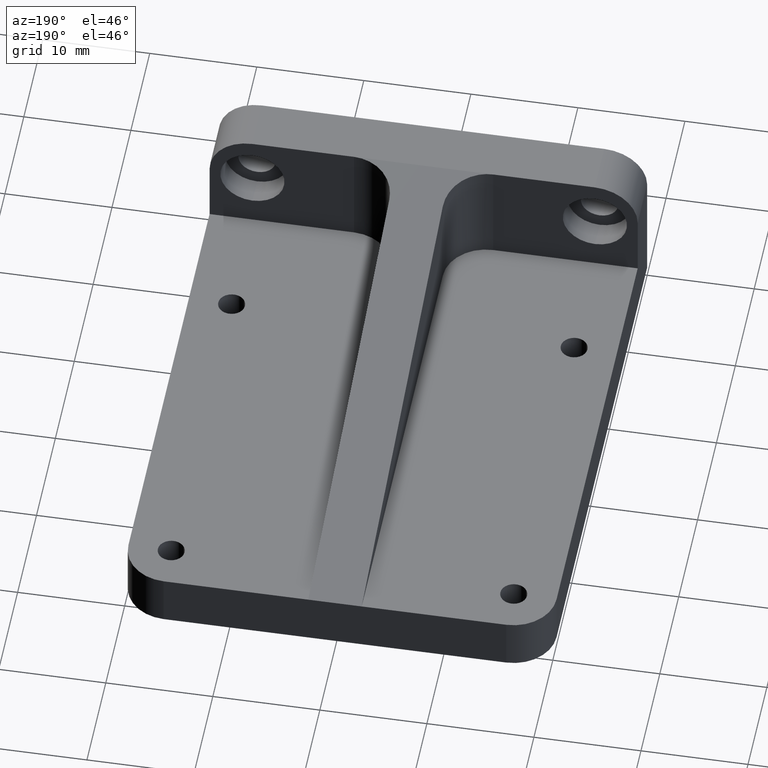
[diagram: clean part render]
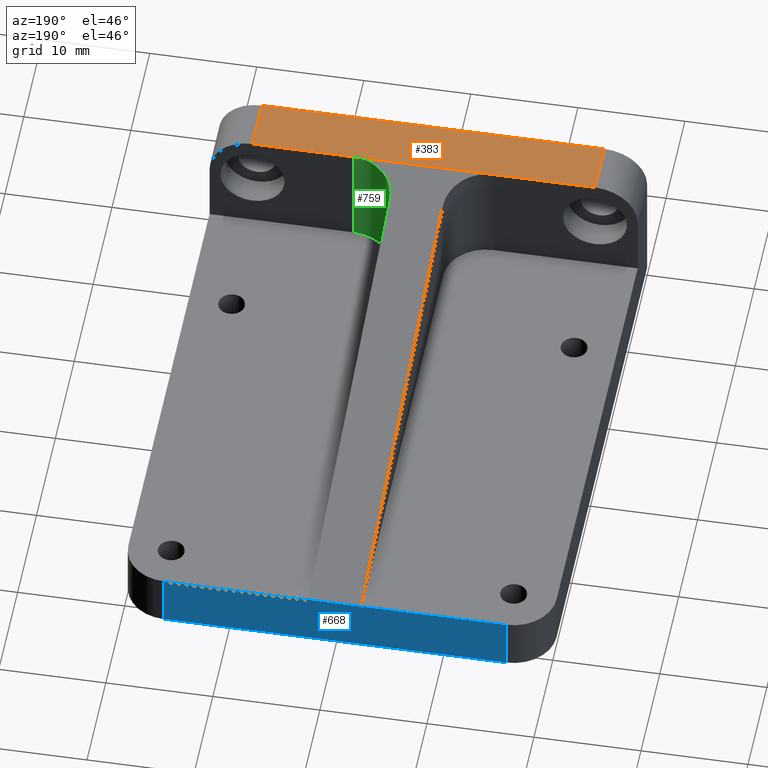
[diagram: same view with three faces highlighted in distinct colors, each labeled with its STEP entity id]
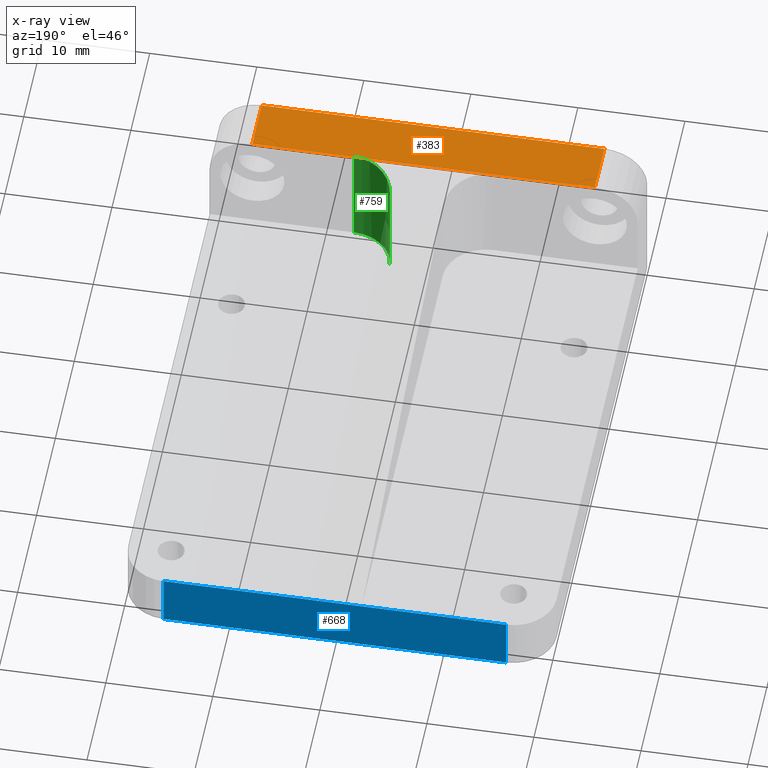
[diagram: x-ray of the same camera — body ghosted, the three highlighted faces saturated]
A machine part, auxiliary view with three faces highlighted in distinct colors.
The next image is the same camera in x-ray (body ghosted, the three faces saturated) — at least one of them is partly hidden behind the body in this view.
Their STEP definitions:

[orange] entity #383 — the highlighted planar face has unit normal (0, 0, -1).
#15 = VECTOR ( 'NONE', #348, 1000.000000000000000 ) ;
#55 = ORIENTED_EDGE ( 'NONE', *, *, #1007, .T. ) ;
#82 = ORIENTED_EDGE ( 'NONE', *, *, #958, .T. ) ;
#115 = VERTEX_POINT ( 'NONE', #713 ) ;
#118 = ORIENTED_EDGE ( 'NONE', *, *, #439, .F. ) ;
#149 = CARTESIAN_POINT ( 'NONE',  ( 20.00000000000000000, -1.836970198721029589E-15, 15.00000000000000000 ) ) ;
#156 = VERTEX_POINT ( 'NONE', #456 ) ;
#203 = CARTESIAN_POINT ( 'NONE',  ( 16.00000000000000000, -1.836970198721029589E-15, 15.00000000000000000 ) ) ;
#206 = CARTESIAN_POINT ( 'NONE',  ( 20.00000000000000000, 4.999999999999998224, 15.00000000000000000 ) ) ;
#262 = VECTOR ( 'NONE', #756, 1000.000000000000000 ) ;
#292 = DIRECTION ( 'NONE',  ( -1.000000000000000000, -0.0000000000000000000, -0.0000000000000000000 ) ) ;
#338 = EDGE_CURVE ( 'NONE', #1134, #678, #1071, .T. ) ;
#348 = DIRECTION ( 'NONE',  ( 0.0000000000000000000, -1.000000000000000000, 0.0000000000000000000 ) ) ;
#352 = CARTESIAN_POINT ( 'NONE',  ( -6.499999999999995559, 4.999999999999998224, 15.00000000000000000 ) ) ;
#375 = LINE ( 'NONE', #557, #473 ) ;
#383 = ADVANCED_FACE ( 'NONE', ( #1003 ), #499, .F. ) ;
#405 = ORIENTED_EDGE ( 'NONE', *, *, #338, .F. ) ;
#439 = EDGE_CURVE ( 'NONE', #712, #584, #519, .T. ) ;
#456 = CARTESIAN_POINT ( 'NONE',  ( 6.500000000000005329, 4.999999999999998224, 15.00000000000000000 ) ) ;
#473 = VECTOR ( 'NONE', #292, 1000.000000000000000 ) ;
#480 = LINE ( 'NONE', #561, #906 ) ;
#499 = PLANE ( 'NONE',  #564 ) ;
#519 = LINE ( 'NONE', #909, #672 ) ;
#557 = CARTESIAN_POINT ( 'NONE',  ( 20.00000000000000000, 4.999999999999998224, 15.00000000000000000 ) ) ;
#561 = CARTESIAN_POINT ( 'NONE',  ( 16.00000000000000000, -1.836970198721029589E-15, 15.00000000000000000 ) ) ;
#564 = AXIS2_PLACEMENT_3D ( 'NONE', #149, #1187, #717 ) ;
#570 = DIRECTION ( 'NONE',  ( -0.0000000000000000000, 1.000000000000000000, -0.0000000000000000000 ) ) ;
#584 = VERTEX_POINT ( 'NONE', #602 ) ;
#600 = EDGE_LOOP ( 'NONE', ( #118, #904, #1107, #55, #405, #82 ) ) ;
#602 = CARTESIAN_POINT ( 'NONE',  ( -16.00000000000000355, -1.836970198721029589E-15, 15.00000000000000000 ) ) ;
#607 = VECTOR ( 'NONE', #1099, 1000.000000000000000 ) ;
#672 = VECTOR ( 'NONE', #711, 1000.000000000000000 ) ;
#678 = VERTEX_POINT ( 'NONE', #352 ) ;
#711 = DIRECTION ( 'NONE',  ( -1.000000000000000000, -0.0000000000000000000, -0.0000000000000000000 ) ) ;
#712 = VERTEX_POINT ( 'NONE', #203 ) ;
#713 = CARTESIAN_POINT ( 'NONE',  ( 16.00000000000000000, 4.999999999999998224, 15.00000000000000000 ) ) ;
#717 = DIRECTION ( 'NONE',  ( -1.000000000000000000, 0.0000000000000000000, -0.0000000000000000000 ) ) ;
#755 = CARTESIAN_POINT ( 'NONE',  ( -16.00000000000000355, 4.999999999999998224, 15.00000000000000000 ) ) ;
#756 = DIRECTION ( 'NONE',  ( 1.000000000000000000, 0.0000000000000000000, 0.0000000000000000000 ) ) ;
#904 = ORIENTED_EDGE ( 'NONE', *, *, #1054, .T. ) ;
#906 = VECTOR ( 'NONE', #570, 1000.000000000000000 ) ;
#909 = CARTESIAN_POINT ( 'NONE',  ( 20.00000000000000000, -1.836970198721029589E-15, 15.00000000000000000 ) ) ;
#958 = EDGE_CURVE ( 'NONE', #1134, #584, #1021, .T. ) ;
#1003 = FACE_OUTER_BOUND ( 'NONE', #600, .T. ) ;
#1007 = EDGE_CURVE ( 'NONE', #156, #678, #375, .T. ) ;
#1015 = CARTESIAN_POINT ( 'NONE',  ( -16.00000000000000355, -1.836970198721029589E-15, 15.00000000000000000 ) ) ;
#1021 = LINE ( 'NONE', #1015, #15 ) ;
#1054 = EDGE_CURVE ( 'NONE', #712, #115, #480, .T. ) ;
#1064 = CARTESIAN_POINT ( 'NONE',  ( -20.00000000000000000, 4.999999999999998224, 15.00000000000000000 ) ) ;
#1071 = LINE ( 'NONE', #1064, #262 ) ;
#1099 = DIRECTION ( 'NONE',  ( -1.000000000000000000, -0.0000000000000000000, -0.0000000000000000000 ) ) ;
#1107 = ORIENTED_EDGE ( 'NONE', *, *, #1183, .T. ) ;
#1134 = VERTEX_POINT ( 'NONE', #755 ) ;
#1180 = LINE ( 'NONE', #206, #607 ) ;
#1183 = EDGE_CURVE ( 'NONE', #115, #156, #1180, .T. ) ;
#1187 = DIRECTION ( 'NONE',  ( 0.0000000000000000000, 0.0000000000000000000, -1.000000000000000000 ) ) ;

[blue] entity #668 — the highlighted planar face has unit normal (0, -1, 0).
#1 = VECTOR ( 'NONE', #702, 1000.000000000000000 ) ;
#66 = VECTOR ( 'NONE', #546, 1000.000000000000000 ) ;
#77 = VERTEX_POINT ( 'NONE', #1201 ) ;
#144 = DIRECTION ( 'NONE',  ( -1.000000000000000000, -0.0000000000000000000, -0.0000000000000000000 ) ) ;
#147 = EDGE_CURVE ( 'NONE', #77, #703, #733, .T. ) ;
#172 = VECTOR ( 'NONE', #1185, 1000.000000000000000 ) ;
#302 = CARTESIAN_POINT ( 'NONE',  ( -16.00000000000000355, 52.00000000000000000, 0.0000000000000000000 ) ) ;
#304 = ORIENTED_EDGE ( 'NONE', *, *, #764, .T. ) ;
#426 = VERTEX_POINT ( 'NONE', #786 ) ;
#486 = ORIENTED_EDGE ( 'NONE', *, *, #585, .F. ) ;
#544 = DIRECTION ( 'NONE',  ( -0.0000000000000000000, -0.0000000000000000000, -1.000000000000000000 ) ) ;
#545 = VECTOR ( 'NONE', #738, 1000.000000000000000 ) ;
#546 = DIRECTION ( 'NONE',  ( -1.000000000000000000, -0.0000000000000000000, -0.0000000000000000000 ) ) ;
#548 = CARTESIAN_POINT ( 'NONE',  ( -20.00000000000000000, 52.00000000000000000, 4.999999999999997335 ) ) ;
#585 = EDGE_CURVE ( 'NONE', #757, #849, #590, .T. ) ;
#590 = LINE ( 'NONE', #1089, #787 ) ;
#634 = EDGE_CURVE ( 'NONE', #703, #426, #833, .T. ) ;
#639 = DIRECTION ( 'NONE',  ( 0.0000000000000000000, -0.0000000000000000000, -1.000000000000000000 ) ) ;
#660 = EDGE_LOOP ( 'NONE', ( #1155, #1030, #1072, #980, #304, #486 ) ) ;
#668 = ADVANCED_FACE ( 'NONE', ( #949 ), #851, .F. ) ;
#690 = EDGE_CURVE ( 'NONE', #1208, #757, #766, .T. ) ;
#702 = DIRECTION ( 'NONE',  ( 0.0000000000000000000, 0.0000000000000000000, 1.000000000000000000 ) ) ;
#703 = VERTEX_POINT ( 'NONE', #302 ) ;
#733 = LINE ( 'NONE', #1240, #66 ) ;
#738 = DIRECTION ( 'NONE',  ( 1.000000000000000000, 0.0000000000000000000, -0.0000000000000000000 ) ) ;
#757 = VERTEX_POINT ( 'NONE', #942 ) ;
#764 = EDGE_CURVE ( 'NONE', #426, #849, #1234, .T. ) ;
#766 = LINE ( 'NONE', #995, #172 ) ;
#786 = CARTESIAN_POINT ( 'NONE',  ( -16.00000000000000355, 52.00000000000000000, 4.999999999999997335 ) ) ;
#787 = VECTOR ( 'NONE', #144, 1000.000000000000000 ) ;
#833 = LINE ( 'NONE', #1019, #1 ) ;
#837 = LINE ( 'NONE', #843, #1130 ) ;
#843 = CARTESIAN_POINT ( 'NONE',  ( 16.00000000000000000, 52.00000000000000000, 0.0000000000000000000 ) ) ;
#849 = VERTEX_POINT ( 'NONE', #1123 ) ;
#851 = PLANE ( 'NONE',  #961 ) ;
#864 = CARTESIAN_POINT ( 'NONE',  ( 20.00000000000000000, 52.00000000000000000, 0.0000000000000000000 ) ) ;
#942 = CARTESIAN_POINT ( 'NONE',  ( 2.500000000000005773, 52.00000000000000000, 4.999999999999997335 ) ) ;
#949 = FACE_OUTER_BOUND ( 'NONE', #660, .T. ) ;
#961 = AXIS2_PLACEMENT_3D ( 'NONE', #864, #1243, #639 ) ;
#980 = ORIENTED_EDGE ( 'NONE', *, *, #634, .T. ) ;
#992 = EDGE_CURVE ( 'NONE', #1208, #77, #837, .T. ) ;
#995 = CARTESIAN_POINT ( 'NONE',  ( 20.00000000000000000, 52.00000000000000000, 5.000000000000000000 ) ) ;
#1019 = CARTESIAN_POINT ( 'NONE',  ( -16.00000000000000355, 52.00000000000000000, 5.000000000000000000 ) ) ;
#1030 = ORIENTED_EDGE ( 'NONE', *, *, #992, .T. ) ;
#1072 = ORIENTED_EDGE ( 'NONE', *, *, #147, .T. ) ;
#1082 = CARTESIAN_POINT ( 'NONE',  ( 16.00000000000000000, 52.00000000000000000, 5.000000000000000000 ) ) ;
#1089 = CARTESIAN_POINT ( 'NONE',  ( 20.00000000000000000, 52.00000000000000000, 5.000000000000000000 ) ) ;
#1123 = CARTESIAN_POINT ( 'NONE',  ( -2.500000000000005773, 52.00000000000000000, 4.999999999999997335 ) ) ;
#1130 = VECTOR ( 'NONE', #544, 1000.000000000000000 ) ;
#1155 = ORIENTED_EDGE ( 'NONE', *, *, #690, .F. ) ;
#1185 = DIRECTION ( 'NONE',  ( -1.000000000000000000, -0.0000000000000000000, -0.0000000000000000000 ) ) ;
#1201 = CARTESIAN_POINT ( 'NONE',  ( 16.00000000000000000, 52.00000000000000000, 0.0000000000000000000 ) ) ;
#1208 = VERTEX_POINT ( 'NONE', #1082 ) ;
#1234 = LINE ( 'NONE', #548, #545 ) ;
#1240 = CARTESIAN_POINT ( 'NONE',  ( 20.00000000000000000, 52.00000000000000000, 0.0000000000000000000 ) ) ;
#1243 = DIRECTION ( 'NONE',  ( 0.0000000000000000000, -1.000000000000000000, 0.0000000000000000000 ) ) ;

[green] entity #759 — the highlighted cylindrical surface (partial cylindrical patch) has radius 4 mm, axis along (0, 0, -1).
#18 = LINE ( 'NONE', #111, #31 ) ;
#21 = AXIS2_PLACEMENT_3D ( 'NONE', #88, #840, #854 ) ;
#31 = VECTOR ( 'NONE', #852, 1000.000000000000000 ) ;
#43 = CARTESIAN_POINT ( 'NONE',  ( 2.500000000000006661, 8.999999999999998224, 4.999999999999997335 ) ) ;
#61 = DIRECTION ( 'NONE',  ( 1.000000000000000000, 0.0000000000000000000, 0.0000000000000000000 ) ) ;
#88 = CARTESIAN_POINT ( 'NONE',  ( 6.500000000000005329, 8.999999999999998224, -50.15226814412284995 ) ) ;
#91 = LINE ( 'NONE', #543, #652 ) ;
#105 = CARTESIAN_POINT ( 'NONE',  ( 2.500000000000006661, 9.000000000000001776, 14.14893617021276562 ) ) ;
#111 = CARTESIAN_POINT ( 'NONE',  ( 2.500000000000006661, 8.999999999999998224, 4.999999999999997335 ) ) ;
#156 = VERTEX_POINT ( 'NONE', #456 ) ;
#162 = ORIENTED_EDGE ( 'NONE', *, *, #498, .F. ) ;
#174 = FACE_OUTER_BOUND ( 'NONE', #436, .T. ) ;
#179 = CYLINDRICAL_SURFACE ( 'NONE', #21, 4.000000000000000000 ) ;
#235 = CARTESIAN_POINT ( 'NONE',  ( 6.500000000000005329, 4.999999999999999112, 4.999999999999997335 ) ) ;
#251 = DIRECTION ( 'NONE',  ( 0.0000000000000000000, 0.0000000000000000000, 1.000000000000000000 ) ) ;
#256 = CARTESIAN_POINT ( 'NONE',  ( 6.500000000000005329, 4.999999999999998224, 15.00000000000000000 ) ) ;
#303 = ORIENTED_EDGE ( 'NONE', *, *, #649, .F. ) ;
#351 = VERTEX_POINT ( 'NONE', #105 ) ;
#363 = DIRECTION ( 'NONE',  ( 0.0000000000000000000, 0.0000000000000000000, 1.000000000000000000 ) ) ;
#370 = ORIENTED_EDGE ( 'NONE', *, *, #929, .F. ) ;
#436 = EDGE_LOOP ( 'NONE', ( #162, #504, #370, #303 ) ) ;
#456 = CARTESIAN_POINT ( 'NONE',  ( 6.500000000000005329, 4.999999999999998224, 15.00000000000000000 ) ) ;
#498 = EDGE_CURVE ( 'NONE', #568, #579, #1227, .T. ) ;
#504 = ORIENTED_EDGE ( 'NONE', *, *, #1132, .F. ) ;
#533 = CARTESIAN_POINT ( 'NONE',  ( 2.500000000000006661, 9.000000000000001776, 14.14893617021276562 ) ) ;
#543 = CARTESIAN_POINT ( 'NONE',  ( 6.500000000000005329, 4.999999999999999112, 15.00000000000000000 ) ) ;
#568 = VERTEX_POINT ( 'NONE', #43 ) ;
#579 = VERTEX_POINT ( 'NONE', #235 ) ;
#649 = EDGE_CURVE ( 'NONE', #579, #156, #91, .T. ) ;
#652 = VECTOR ( 'NONE', #363, 1000.000000000000000 ) ;
#759 = ADVANCED_FACE ( 'NONE', ( #174 ), #179, .F. ) ;
#810 =( BOUNDED_CURVE ( )  B_SPLINE_CURVE ( 3, ( #256, #834, #1037, #533 ),
 .UNSPECIFIED., .F., .T. ) 
 B_SPLINE_CURVE_WITH_KNOTS ( ( 4, 4 ),
 ( 3.141592653589793116, 4.712388980384690562 ),
 .UNSPECIFIED. ) 
 CURVE ( )  GEOMETRIC_REPRESENTATION_ITEM ( )  RATIONAL_B_SPLINE_CURVE ( ( 1.000000000000000000, 0.8047378541243648264, 0.8047378541243648264, 1.000000000000000000 ) ) 
 REPRESENTATION_ITEM ( '' )  );
#834 = CARTESIAN_POINT ( 'NONE',  ( 4.156854249492385023, 4.999999999999996447, 14.99999999999999645 ) ) ;
#840 = DIRECTION ( 'NONE',  ( 0.0000000000000000000, 0.0000000000000000000, -1.000000000000000000 ) ) ;
#852 = DIRECTION ( 'NONE',  ( -0.0000000000000000000, -0.0000000000000000000, -1.000000000000000000 ) ) ;
#854 = DIRECTION ( 'NONE',  ( -1.000000000000000000, 0.0000000000000000000, 0.0000000000000000000 ) ) ;
#929 = EDGE_CURVE ( 'NONE', #156, #351, #810, .T. ) ;
#1037 = CARTESIAN_POINT ( 'NONE',  ( 2.500000000000003109, 6.656854249492379694, 14.64747781925693815 ) ) ;
#1132 = EDGE_CURVE ( 'NONE', #351, #568, #18, .T. ) ;
#1135 = AXIS2_PLACEMENT_3D ( 'NONE', #1188, #251, #61 ) ;
#1188 = CARTESIAN_POINT ( 'NONE',  ( 6.500000000000005329, 8.999999999999998224, 4.999999999999997335 ) ) ;
#1227 = CIRCLE ( 'NONE', #1135, 4.000000000000000000 ) ;